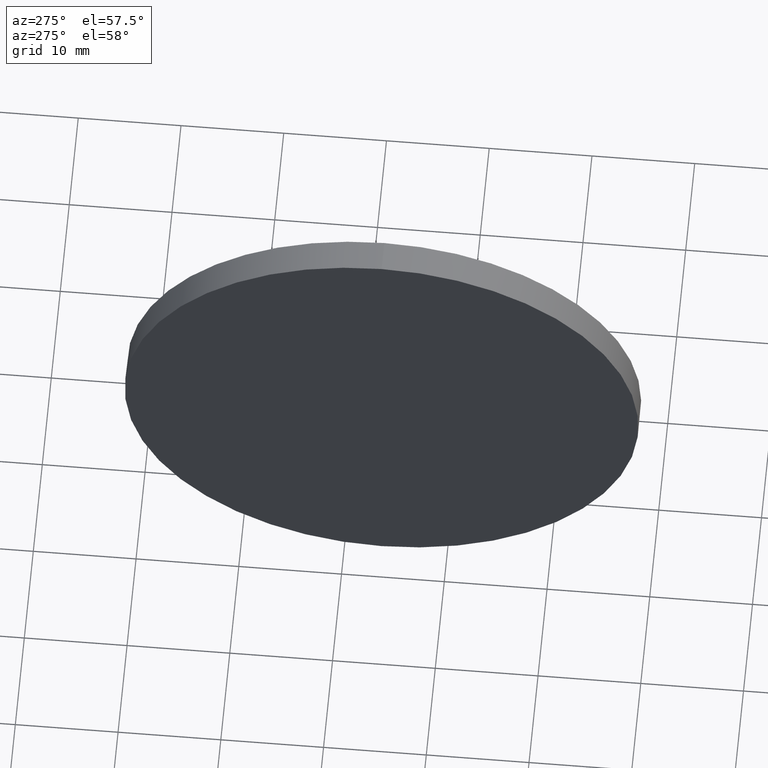
[diagram: clean part render]
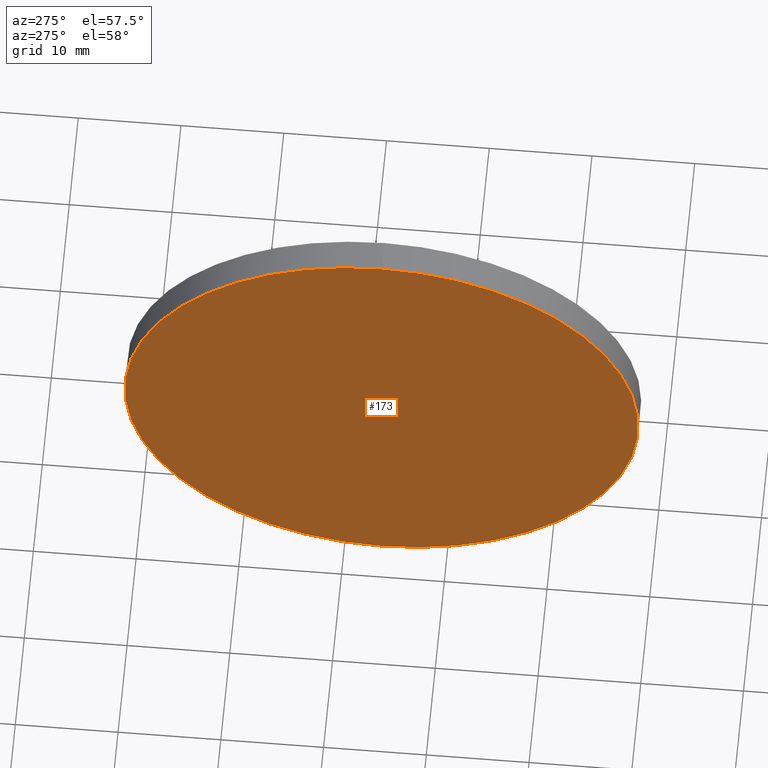
[diagram: same view with one face highlighted and labeled with its STEP entity id]
A machine part, auxiliary view. The second image highlights one B-rep face of the part: STEP entity #173.
In plain terms, the highlighted planar face has unit normal (1, 0, 0).
Its self-contained STEP definition (entity closure, byte-faithful):
#13 = EDGE_CURVE ( 'NONE', #76, #169, #143, .T. ) ;
#17 = EDGE_CURVE ( 'NONE', #169, #76, #48, .T. ) ;
#19 = AXIS2_PLACEMENT_3D ( 'NONE', #148, #175, #176 ) ;
#37 = DIRECTION ( 'NONE',  ( -1.000000000000000000, -0.0000000000000000000, -0.0000000000000000000 ) ) ;
#48 = CIRCLE ( 'NONE', #149, 24.99999999999996800 ) ;
#49 = EDGE_LOOP ( 'NONE', ( #65, #128 ) ) ;
#58 = DIRECTION ( 'NONE',  ( 1.000000000000000000, 0.0000000000000000000, 0.0000000000000000000 ) ) ;
#60 = PLANE ( 'NONE',  #70 ) ;
#65 = ORIENTED_EDGE ( 'NONE', *, *, #17, .T. ) ;
#70 = AXIS2_PLACEMENT_3D ( 'NONE', #135, #58, #75 ) ;
#75 = DIRECTION ( 'NONE',  ( 0.0000000000000000000, 0.0000000000000000000, -1.000000000000000000 ) ) ;
#76 = VERTEX_POINT ( 'NONE', #146 ) ;
#93 = FACE_OUTER_BOUND ( 'NONE', #49, .T. ) ;
#97 = CARTESIAN_POINT ( 'NONE',  ( 832.8614866702325800, 326.3556078819852900, 24.99999999999996800 ) ) ;
#128 = ORIENTED_EDGE ( 'NONE', *, *, #13, .T. ) ;
#135 = CARTESIAN_POINT ( 'NONE',  ( 832.8614866702325800, 326.3556078819852900, 0.0000000000000000000 ) ) ;
#143 = CIRCLE ( 'NONE', #19, 24.99999999999996800 ) ;
#146 = CARTESIAN_POINT ( 'NONE',  ( 832.8614866702325800, 326.3556078819852900, -24.99999999999996800 ) ) ;
#148 = CARTESIAN_POINT ( 'NONE',  ( 832.8614866702325800, 326.3556078819852900, 0.0000000000000000000 ) ) ;
#149 = AXIS2_PLACEMENT_3D ( 'NONE', #177, #37, #150 ) ;
#150 = DIRECTION ( 'NONE',  ( 0.0000000000000000000, 0.0000000000000000000, 1.000000000000000000 ) ) ;
#169 = VERTEX_POINT ( 'NONE', #97 ) ;
#173 = ADVANCED_FACE ( 'NONE', ( #93 ), #60, .F. ) ;
#175 = DIRECTION ( 'NONE',  ( -1.000000000000000000, -0.0000000000000000000, -0.0000000000000000000 ) ) ;
#176 = DIRECTION ( 'NONE',  ( 0.0000000000000000000, 0.0000000000000000000, 1.000000000000000000 ) ) ;
#177 = CARTESIAN_POINT ( 'NONE',  ( 832.8614866702325800, 326.3556078819852900, 0.0000000000000000000 ) ) ;